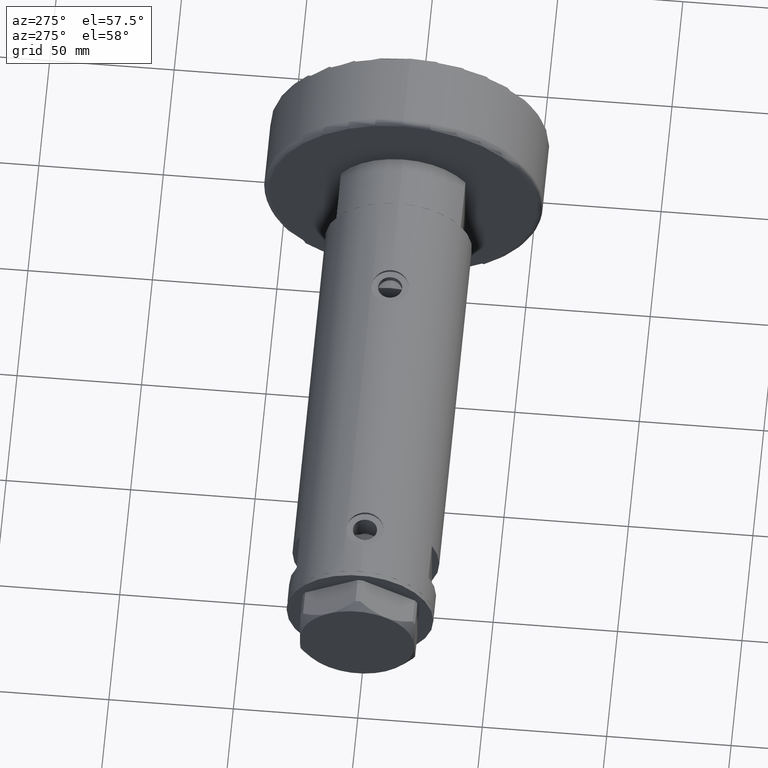
[diagram: clean part render]
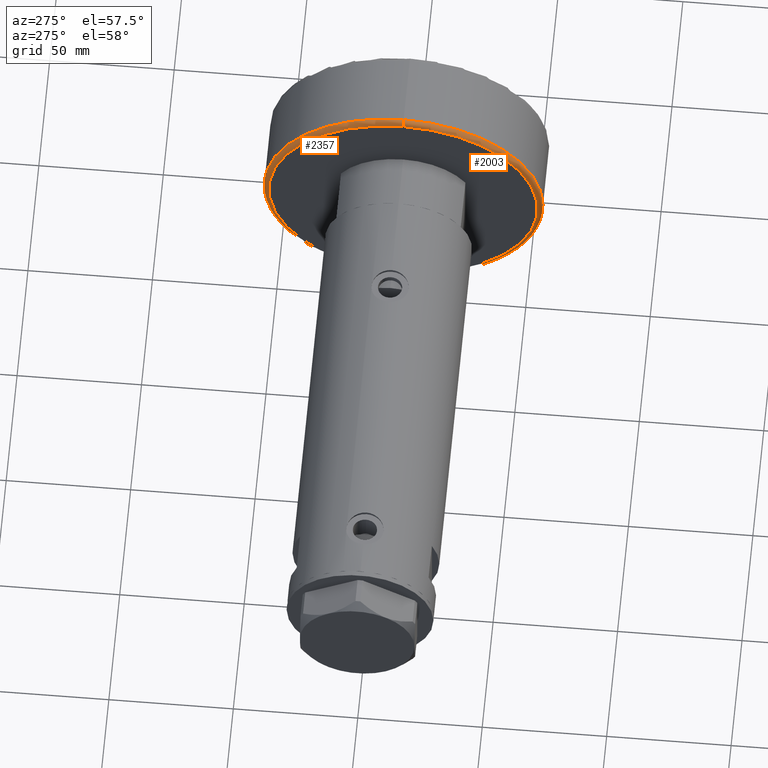
[diagram: same view with one multi-face feature highlighted, each face labeled with its STEP entity id]
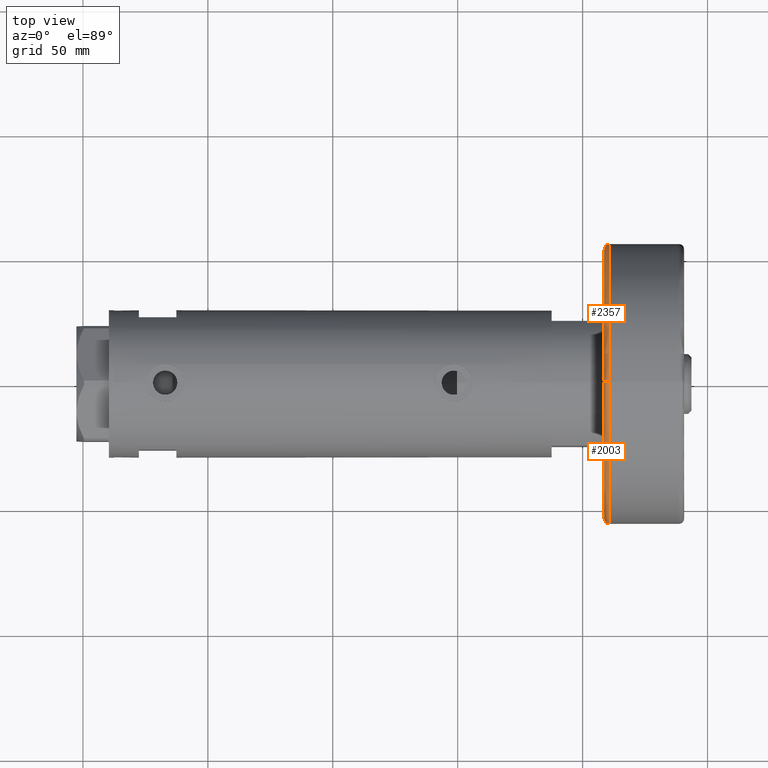
[diagram: same view with one multi-face feature highlighted, each face labeled with its STEP entity id]
A machine part, auxiliary view. The highlighted faces form ONE feature: a constant-radius fillet chain: 2 tangent blend faces with common blend radius 2 mm. The faces share edges in the B-rep.
A second angle (top view) of the same feature is appended — it is thin or edge-on in the first view.
Their STEP definitions:
[1] entity #2357 (Torus):
#101 = DIRECTION ( 'NONE',  ( 0.000000000000000000, 0.000000000000000000, 1.000000000000000000 ) ) ;
#310 = CARTESIAN_POINT ( 'NONE',  ( -56.00000000000000000, 0.000000000000000000, 2.000000000000001776 ) ) ;
#584 = CARTESIAN_POINT ( 'NONE',  ( 56.00000000000000000, 6.858022075225178552E-15, 2.000000000000001776 ) ) ;
#636 = ORIENTED_EDGE ( 'NONE', *, *, #4400, .F. ) ;
#716 = DIRECTION ( 'NONE',  ( 0.000000000000000000, 0.000000000000000000, 1.000000000000000000 ) ) ;
#892 = TOROIDAL_SURFACE ( 'NONE', #2855, 54.00000000000000000, 2.000000000000000000 ) ;
#1017 = CARTESIAN_POINT ( 'NONE',  ( 0.000000000000000000, 0.000000000000000000, 0.000000000000000000 ) ) ;
#1044 = EDGE_CURVE ( 'NONE', #4204, #4089, #4355, .T. ) ;
#1235 = ORIENTED_EDGE ( 'NONE', *, *, #3368, .F. ) ;
#1356 = VERTEX_POINT ( 'NONE', #1389 ) ;
#1389 = CARTESIAN_POINT ( 'NONE',  ( 54.00000000000000000, 0.000000000000000000, 0.000000000000000000 ) ) ;
#1400 = DIRECTION ( 'NONE',  ( 0.000000000000000000, 0.000000000000000000, -1.000000000000000000 ) ) ;
#1607 = CARTESIAN_POINT ( 'NONE',  ( 0.000000000000000000, 0.000000000000000000, 2.000000000000001776 ) ) ;
#1624 = AXIS2_PLACEMENT_3D ( 'NONE', #4806, #2643, #3417 ) ;
#1809 = CARTESIAN_POINT ( 'NONE',  ( 0.000000000000000000, 0.000000000000000000, 2.000000000000001776 ) ) ;
#1853 = CIRCLE ( 'NONE', #2093, 2.000000000000000000 ) ;
#1883 = VERTEX_POINT ( 'NONE', #4670 ) ;
#2019 = ORIENTED_EDGE ( 'NONE', *, *, #1044, .F. ) ;
#2093 = AXIS2_PLACEMENT_3D ( 'NONE', #2118, #3606, #1400 ) ;
#2118 = CARTESIAN_POINT ( 'NONE',  ( 54.00000000000000000, 0.000000000000000000, 2.000000000000001776 ) ) ;
#2167 = AXIS2_PLACEMENT_3D ( 'NONE', #1607, #101, #2439 ) ;
#2216 = DIRECTION ( 'NONE',  ( 1.000000000000000000, 0.000000000000000000, 0.000000000000000000 ) ) ;
#2219 = EDGE_CURVE ( 'NONE', #1883, #4089, #4053, .T. ) ;
#2243 = AXIS2_PLACEMENT_3D ( 'NONE', #1017, #2520, #4020 ) ;
#2357 = ADVANCED_FACE ( 'NONE', ( #4070 ), #892, .T. ) ;
#2439 = DIRECTION ( 'NONE',  ( 1.000000000000000000, 0.000000000000000000, 0.000000000000000000 ) ) ;
#2491 = CIRCLE ( 'NONE', #2243, 54.00000000000000000 ) ;
#2520 = DIRECTION ( 'NONE',  ( -0.000000000000000000, -0.000000000000000000, -1.000000000000000000 ) ) ;
#2643 = DIRECTION ( 'NONE',  ( 1.224646799147353207E-16, 1.000000000000000000, -0.000000000000000000 ) ) ;
#2855 = AXIS2_PLACEMENT_3D ( 'NONE', #1809, #716, #2216 ) ;
#3368 = EDGE_CURVE ( 'NONE', #1356, #4204, #1853, .T. ) ;
#3417 = DIRECTION ( 'NONE',  ( -1.000000000000000000, 1.224646799147353454E-16, 0.000000000000000000 ) ) ;
#3606 = DIRECTION ( 'NONE',  ( 0.000000000000000000, -1.000000000000000000, 0.000000000000000000 ) ) ;
#3719 = ORIENTED_EDGE ( 'NONE', *, *, #2219, .T. ) ;
#4020 = DIRECTION ( 'NONE',  ( 1.000000000000000000, 0.000000000000000000, 0.000000000000000000 ) ) ;
#4053 = CIRCLE ( 'NONE', #1624, 2.000000000000001776 ) ;
#4070 = FACE_OUTER_BOUND ( 'NONE', #4212, .T. ) ;
#4089 = VERTEX_POINT ( 'NONE', #310 ) ;
#4204 = VERTEX_POINT ( 'NONE', #584 ) ;
#4212 = EDGE_LOOP ( 'NONE', ( #636, #3719, #2019, #1235 ) ) ;
#4355 = CIRCLE ( 'NONE', #2167, 56.00000000000000000 ) ;
#4400 = EDGE_CURVE ( 'NONE', #1883, #1356, #2491, .T. ) ;
#4670 = CARTESIAN_POINT ( 'NONE',  ( -54.00000000000000000, 6.735557395310443404E-15, 0.000000000000000000 ) ) ;
#4806 = CARTESIAN_POINT ( 'NONE',  ( -54.00000000000000000, 6.613092715395707467E-15, 2.000000000000001776 ) ) ;
[2] entity #2003 (Torus):
#310 = CARTESIAN_POINT ( 'NONE',  ( -56.00000000000000000, 0.000000000000000000, 2.000000000000001776 ) ) ;
#584 = CARTESIAN_POINT ( 'NONE',  ( 56.00000000000000000, 6.858022075225178552E-15, 2.000000000000001776 ) ) ;
#598 = AXIS2_PLACEMENT_3D ( 'NONE', #3825, #3864, #2371 ) ;
#613 = ORIENTED_EDGE ( 'NONE', *, *, #3368, .T. ) ;
#634 = CARTESIAN_POINT ( 'NONE',  ( 0.000000000000000000, 0.000000000000000000, 2.000000000000001776 ) ) ;
#688 = DIRECTION ( 'NONE',  ( 0.000000000000000000, 0.000000000000000000, 1.000000000000000000 ) ) ;
#1097 = DIRECTION ( 'NONE',  ( 1.000000000000000000, 0.000000000000000000, 0.000000000000000000 ) ) ;
#1326 = FACE_OUTER_BOUND ( 'NONE', #2207, .T. ) ;
#1356 = VERTEX_POINT ( 'NONE', #1389 ) ;
#1389 = CARTESIAN_POINT ( 'NONE',  ( 54.00000000000000000, 0.000000000000000000, 0.000000000000000000 ) ) ;
#1400 = DIRECTION ( 'NONE',  ( 0.000000000000000000, 0.000000000000000000, -1.000000000000000000 ) ) ;
#1624 = AXIS2_PLACEMENT_3D ( 'NONE', #4806, #2643, #3417 ) ;
#1853 = CIRCLE ( 'NONE', #2093, 2.000000000000000000 ) ;
#1883 = VERTEX_POINT ( 'NONE', #4670 ) ;
#2003 = ADVANCED_FACE ( 'NONE', ( #1326 ), #2013, .T. ) ;
#2013 = TOROIDAL_SURFACE ( 'NONE', #598, 54.00000000000000000, 2.000000000000000000 ) ;
#2093 = AXIS2_PLACEMENT_3D ( 'NONE', #2118, #3606, #1400 ) ;
#2118 = CARTESIAN_POINT ( 'NONE',  ( 54.00000000000000000, 0.000000000000000000, 2.000000000000001776 ) ) ;
#2150 = ORIENTED_EDGE ( 'NONE', *, *, #4538, .F. ) ;
#2207 = EDGE_LOOP ( 'NONE', ( #3765, #2150, #613, #2945 ) ) ;
#2219 = EDGE_CURVE ( 'NONE', #1883, #4089, #4053, .T. ) ;
#2320 = CIRCLE ( 'NONE', #3577, 56.00000000000000000 ) ;
#2371 = DIRECTION ( 'NONE',  ( 1.000000000000000000, 0.000000000000000000, 0.000000000000000000 ) ) ;
#2643 = DIRECTION ( 'NONE',  ( 1.224646799147353207E-16, 1.000000000000000000, -0.000000000000000000 ) ) ;
#2945 = ORIENTED_EDGE ( 'NONE', *, *, #3733, .F. ) ;
#3368 = EDGE_CURVE ( 'NONE', #1356, #4204, #1853, .T. ) ;
#3371 = CARTESIAN_POINT ( 'NONE',  ( 0.000000000000000000, 0.000000000000000000, 0.000000000000000000 ) ) ;
#3415 = AXIS2_PLACEMENT_3D ( 'NONE', #3371, #4526, #3786 ) ;
#3417 = DIRECTION ( 'NONE',  ( -1.000000000000000000, 1.224646799147353454E-16, 0.000000000000000000 ) ) ;
#3577 = AXIS2_PLACEMENT_3D ( 'NONE', #634, #688, #1097 ) ;
#3606 = DIRECTION ( 'NONE',  ( 0.000000000000000000, -1.000000000000000000, 0.000000000000000000 ) ) ;
#3733 = EDGE_CURVE ( 'NONE', #4089, #4204, #2320, .T. ) ;
#3765 = ORIENTED_EDGE ( 'NONE', *, *, #2219, .F. ) ;
#3786 = DIRECTION ( 'NONE',  ( 1.000000000000000000, 0.000000000000000000, 0.000000000000000000 ) ) ;
#3825 = CARTESIAN_POINT ( 'NONE',  ( 0.000000000000000000, 0.000000000000000000, 2.000000000000001776 ) ) ;
#3864 = DIRECTION ( 'NONE',  ( 0.000000000000000000, 0.000000000000000000, 1.000000000000000000 ) ) ;
#3890 = CIRCLE ( 'NONE', #3415, 54.00000000000000000 ) ;
#4053 = CIRCLE ( 'NONE', #1624, 2.000000000000001776 ) ;
#4089 = VERTEX_POINT ( 'NONE', #310 ) ;
#4204 = VERTEX_POINT ( 'NONE', #584 ) ;
#4526 = DIRECTION ( 'NONE',  ( -0.000000000000000000, -0.000000000000000000, -1.000000000000000000 ) ) ;
#4538 = EDGE_CURVE ( 'NONE', #1356, #1883, #3890, .T. ) ;
#4670 = CARTESIAN_POINT ( 'NONE',  ( -54.00000000000000000, 6.735557395310443404E-15, 0.000000000000000000 ) ) ;
#4806 = CARTESIAN_POINT ( 'NONE',  ( -54.00000000000000000, 6.613092715395707467E-15, 2.000000000000001776 ) ) ;